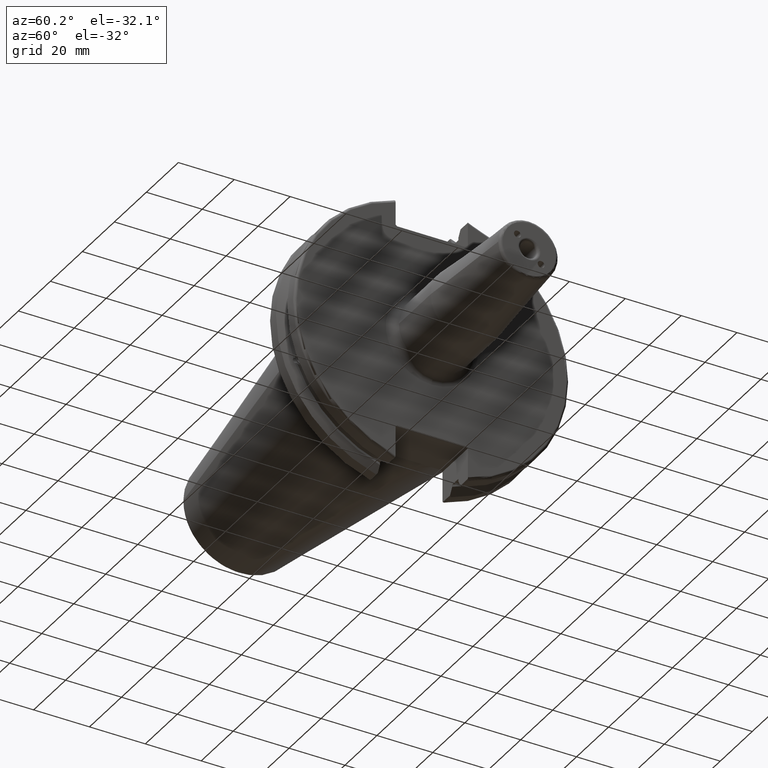
[diagram: clean part render]
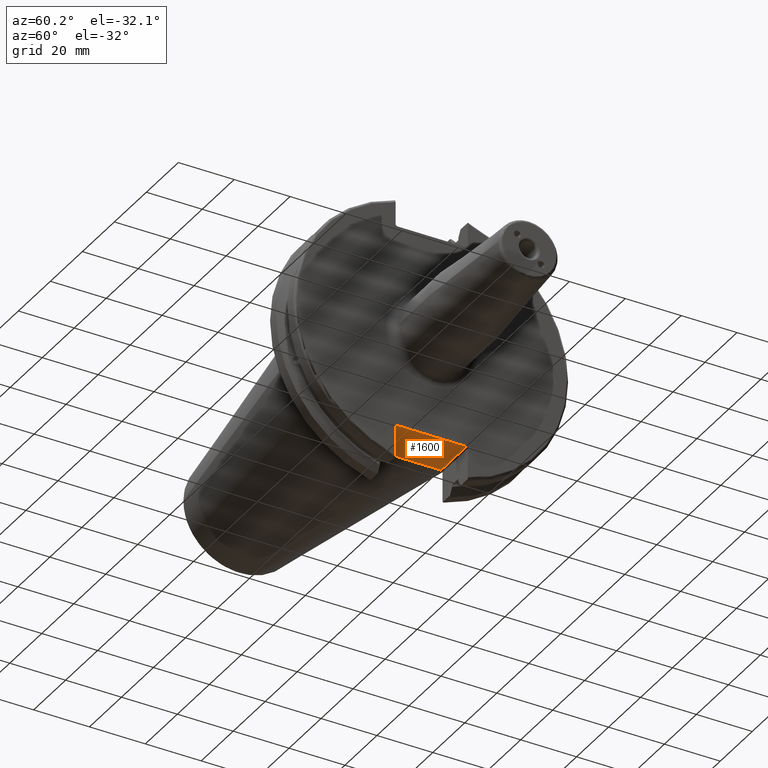
[diagram: same view with one face highlighted and labeled with its STEP entity id]
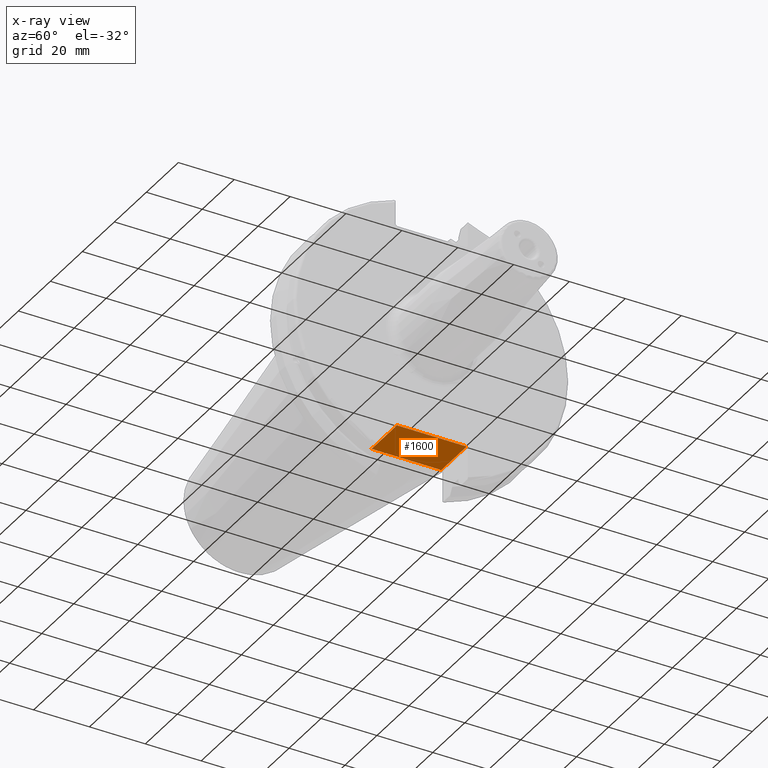
[diagram: x-ray of the same camera — body ghosted, the highlighted face saturated]
A machine part, auxiliary view. The second image highlights one B-rep face of the part: STEP entity #1600.
The next image is the same camera in x-ray: the body ghosted, the highlighted face saturated — about 0% of this face is hidden behind the body in this view.
In plain terms, the highlighted planar face has unit normal (0, 0, 1).
Its self-contained STEP definition (entity closure, byte-faithful):
#53=PLANE('',#1788);
#236=FACE_OUTER_BOUND('',#348,.T.);
#348=EDGE_LOOP('',(#1397,#1398,#1399,#1400));
#395=LINE('',#2453,#493);
#435=LINE('',#2952,#533);
#459=LINE('',#3170,#557);
#460=LINE('',#3172,#558);
#493=VECTOR('',#1936,10.);
#533=VECTOR('',#2104,10.);
#557=VECTOR('',#2186,10.);
#558=VECTOR('',#2189,10.);
#690=VERTEX_POINT('',#2450);
#691=VERTEX_POINT('',#2452);
#767=VERTEX_POINT('',#2949);
#768=VERTEX_POINT('',#2951);
#860=EDGE_CURVE('',#690,#691,#395,.T.);
#960=EDGE_CURVE('',#767,#768,#435,.T.);
#1018=EDGE_CURVE('',#691,#767,#459,.T.);
#1019=EDGE_CURVE('',#768,#690,#460,.T.);
#1397=ORIENTED_EDGE('',*,*,#1018,.F.);
#1398=ORIENTED_EDGE('',*,*,#860,.F.);
#1399=ORIENTED_EDGE('',*,*,#1019,.F.);
#1400=ORIENTED_EDGE('',*,*,#960,.F.);
#1600=ADVANCED_FACE('',(#236),#53,.F.);
#1788=AXIS2_PLACEMENT_3D('',#3171,#2187,#2188);
#1936=DIRECTION('',(0.,1.,0.));
#2104=DIRECTION('',(0.,-1.,0.));
#2186=DIRECTION('',(-1.,2.63163976207444E-16,0.));
#2187=DIRECTION('center_axis',(0.,0.,1.));
#2188=DIRECTION('ref_axis',(1.,0.,0.));
#2189=DIRECTION('',(1.,2.63163976207445E-16,0.));
#2450=CARTESIAN_POINT('',(19.05,-12.45,-35.306));
#2452=CARTESIAN_POINT('',(19.05,12.45,-35.306));
#2453=CARTESIAN_POINT('',(19.05,-3.33066907387547E-15,-35.306));
#2949=CARTESIAN_POINT('',(3.175,12.45,-35.306));
#2951=CARTESIAN_POINT('',(3.175,-12.45,-35.306));
#2952=CARTESIAN_POINT('',(3.175,24.60625,-35.306));
#3170=CARTESIAN_POINT('',(10.63125,12.45,-35.306));
#3171=CARTESIAN_POINT('Origin',(18.0875,-6.66133814775094E-15,-35.306));
#3172=CARTESIAN_POINT('',(19.06875,-12.45,-35.306));